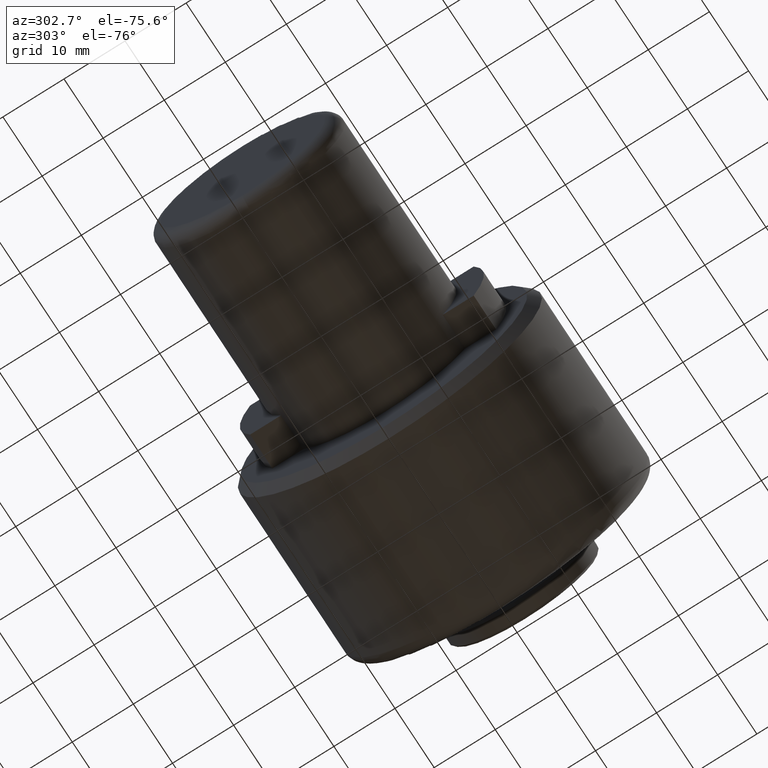
[diagram: clean part render]
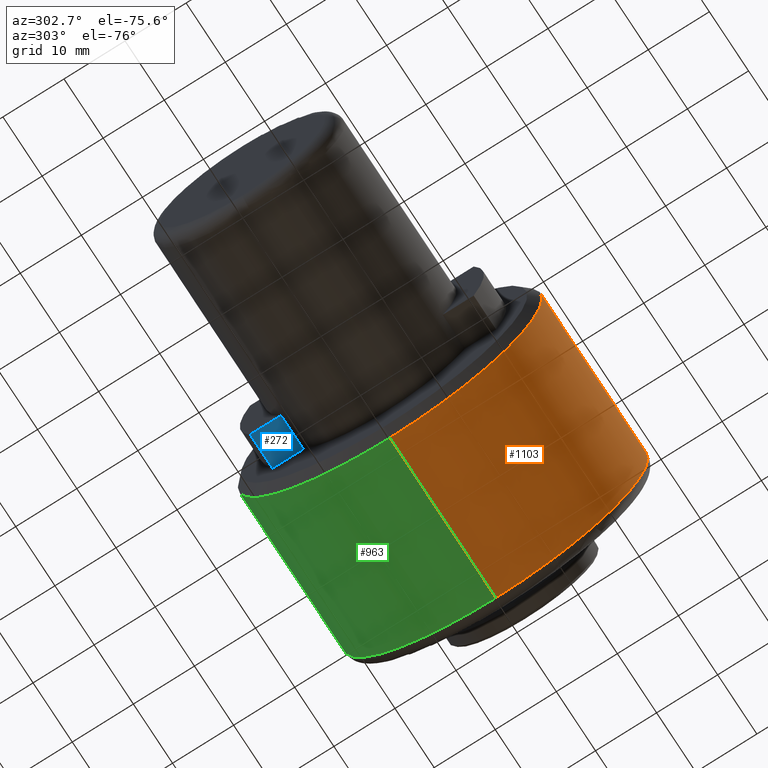
[diagram: same view with three faces highlighted in distinct colors, each labeled with its STEP entity id]
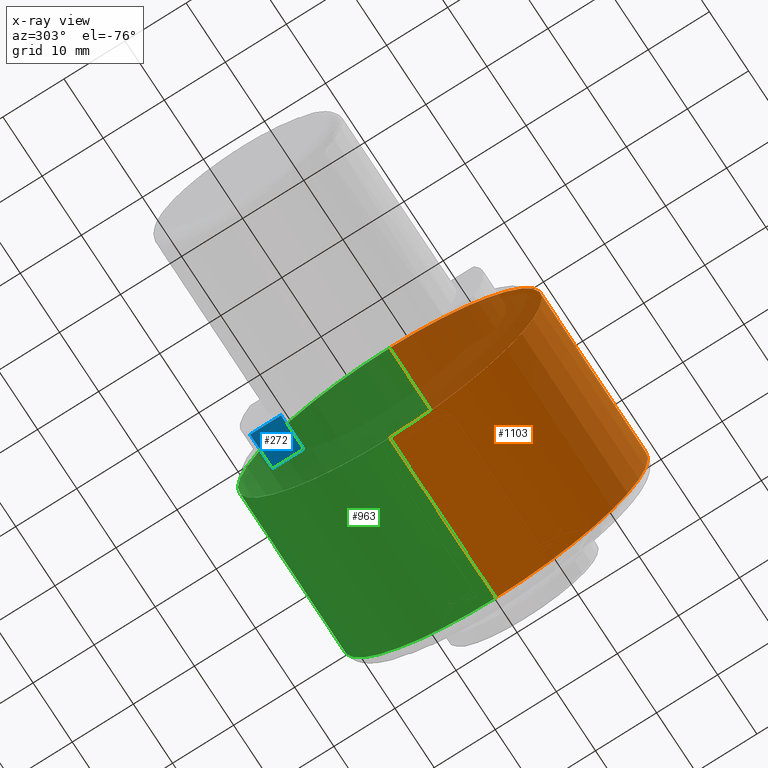
[diagram: x-ray of the same camera — body ghosted, the three highlighted faces saturated]
A machine part, auxiliary view with three faces highlighted in distinct colors.
The next image is the same camera in x-ray (body ghosted, the three faces saturated) — at least one of them is partly hidden behind the body in this view.
Their STEP definitions:

[orange] entity #1103 — the highlighted cylindrical surface (partial cylindrical patch) has radius 24.9 mm, axis along (-1, 0, 0).
#26 = CIRCLE ( 'NONE', #420, 24.89999999999999900 ) ;
#91 = DIRECTION ( 'NONE',  ( 1.000000000000000000, 0.0000000000000000000, 0.0000000000000000000 ) ) ;
#102 = DIRECTION ( 'NONE',  ( -1.000000000000000000, 0.0000000000000000000, 0.0000000000000000000 ) ) ;
#279 = VERTEX_POINT ( 'NONE', #495 ) ;
#291 = LINE ( 'NONE', #391, #810 ) ;
#312 = VERTEX_POINT ( 'NONE', #392 ) ;
#391 = CARTESIAN_POINT ( 'NONE',  ( 50.87143376199999500, 0.0000000000000000000, 24.89999999999999900 ) ) ;
#392 = CARTESIAN_POINT ( 'NONE',  ( 64.59999999999999400, 3.049370529876909300E-015, -24.89999999999999900 ) ) ;
#420 = AXIS2_PLACEMENT_3D ( 'NONE', #763, #91, #874 ) ;
#447 = EDGE_CURVE ( 'NONE', #312, #279, #1313, .T. ) ;
#451 = VERTEX_POINT ( 'NONE', #1076 ) ;
#459 = EDGE_CURVE ( 'NONE', #312, #451, #988, .T. ) ;
#495 = CARTESIAN_POINT ( 'NONE',  ( 64.59999999999999400, 0.0000000000000000000, 24.89999999999999900 ) ) ;
#528 = CARTESIAN_POINT ( 'NONE',  ( 64.59999999999999400, 0.0000000000000000000, 0.0000000000000000000 ) ) ;
#555 = DIRECTION ( 'NONE',  ( 0.0000000000000000000, 0.0000000000000000000, 1.000000000000000000 ) ) ;
#556 = FACE_OUTER_BOUND ( 'NONE', #571, .T. ) ;
#571 = EDGE_LOOP ( 'NONE', ( #1155, #636, #742, #672 ) ) ;
#626 = AXIS2_PLACEMENT_3D ( 'NONE', #528, #1301, #645 ) ;
#636 = ORIENTED_EDGE ( 'NONE', *, *, #447, .T. ) ;
#642 = EDGE_CURVE ( 'NONE', #279, #1437, #291, .T. ) ;
#645 = DIRECTION ( 'NONE',  ( 0.0000000000000000000, 0.0000000000000000000, -1.000000000000000000 ) ) ;
#672 = ORIENTED_EDGE ( 'NONE', *, *, #1022, .T. ) ;
#692 = VECTOR ( 'NONE', #746, 1000.000000000000000 ) ;
#720 = DIRECTION ( 'NONE',  ( -1.000000000000000000, 0.0000000000000000000, 0.0000000000000000000 ) ) ;
#742 = ORIENTED_EDGE ( 'NONE', *, *, #642, .T. ) ;
#746 = DIRECTION ( 'NONE',  ( -1.000000000000000000, 0.0000000000000000000, 0.0000000000000000000 ) ) ;
#763 = CARTESIAN_POINT ( 'NONE',  ( 37.54999999999996900, 0.0000000000000000000, 0.0000000000000000000 ) ) ;
#810 = VECTOR ( 'NONE', #720, 1000.000000000000000 ) ;
#831 = CARTESIAN_POINT ( 'NONE',  ( 37.54999999999996900, 3.049370529876905700E-015, 24.89999999999997000 ) ) ;
#874 = DIRECTION ( 'NONE',  ( 1.114681751631683300E-015, 0.0000000000000000000, -1.000000000000000000 ) ) ;
#988 = LINE ( 'NONE', #1413, #692 ) ;
#996 = CARTESIAN_POINT ( 'NONE',  ( 50.87143376199999500, 0.0000000000000000000, 0.0000000000000000000 ) ) ;
#1022 = EDGE_CURVE ( 'NONE', #1437, #451, #26, .T. ) ;
#1072 = CYLINDRICAL_SURFACE ( 'NONE', #1079, 24.89999999999999900 ) ;
#1076 = CARTESIAN_POINT ( 'NONE',  ( 37.54999999999996900, 0.0000000000000000000, -24.89999999999997000 ) ) ;
#1079 = AXIS2_PLACEMENT_3D ( 'NONE', #996, #102, #555 ) ;
#1103 = ADVANCED_FACE ( 'NONE', ( #556 ), #1072, .T. ) ;
#1155 = ORIENTED_EDGE ( 'NONE', *, *, #459, .F. ) ;
#1301 = DIRECTION ( 'NONE',  ( -1.000000000000000000, 0.0000000000000000000, -0.0000000000000000000 ) ) ;
#1313 = CIRCLE ( 'NONE', #626, 24.89999999999999900 ) ;
#1413 = CARTESIAN_POINT ( 'NONE',  ( 50.87143376199999500, 3.049370529876909300E-015, -24.89999999999999900 ) ) ;
#1437 = VERTEX_POINT ( 'NONE', #831 ) ;

[blue] entity #272 — the highlighted planar face has unit normal (0, 0, -1).
#79 = DIRECTION ( 'NONE',  ( 0.0000000000000000000, 1.000000000000000000, 0.0000000000000000000 ) ) ;
#100 = LINE ( 'NONE', #1267, #406 ) ;
#127 = VERTEX_POINT ( 'NONE', #418 ) ;
#191 = EDGE_LOOP ( 'NONE', ( #428, #928, #798, #1167 ) ) ;
#255 = EDGE_CURVE ( 'NONE', #906, #679, #1231, .T. ) ;
#262 = CARTESIAN_POINT ( 'NONE',  ( 33.25000000000000000, 18.30839971200000000, -8.050000000000000700 ) ) ;
#268 = DIRECTION ( 'NONE',  ( 0.0000000000000000000, 0.0000000000000000000, -1.000000000000000000 ) ) ;
#272 = ADVANCED_FACE ( 'NONE', ( #604 ), #820, .T. ) ;
#283 = EDGE_CURVE ( 'NONE', #127, #349, #1192, .T. ) ;
#308 = VECTOR ( 'NONE', #610, 1000.000000000000000 ) ;
#346 = VECTOR ( 'NONE', #1265, 1000.000000000000000 ) ;
#349 = VERTEX_POINT ( 'NONE', #724 ) ;
#406 = VECTOR ( 'NONE', #488, 1000.000000000000000 ) ;
#418 = CARTESIAN_POINT ( 'NONE',  ( 36.10000000000000100, 13.24565966429947900, -8.050000003574520900 ) ) ;
#428 = ORIENTED_EDGE ( 'NONE', *, *, #283, .T. ) ;
#462 = EDGE_CURVE ( 'NONE', #127, #679, #1283, .T. ) ;
#463 = VECTOR ( 'NONE', #79, 1000.000000000000000 ) ;
#488 = DIRECTION ( 'NONE',  ( 0.0000000000000000000, 1.000000000000000000, 0.0000000000000000000 ) ) ;
#602 = CARTESIAN_POINT ( 'NONE',  ( 22.94394856799999600, 13.24565966529732500, -8.050000001932645000 ) ) ;
#604 = FACE_OUTER_BOUND ( 'NONE', #191, .T. ) ;
#610 = DIRECTION ( 'NONE',  ( -1.000000000000000000, 0.0000000000000000000, 0.0000000000000000000 ) ) ;
#679 = VERTEX_POINT ( 'NONE', #1161 ) ;
#724 = CARTESIAN_POINT ( 'NONE',  ( 30.39999999995988100, 13.24565966588460200, -8.050000000966322800 ) ) ;
#749 = CARTESIAN_POINT ( 'NONE',  ( 30.39999999999999900, 18.30839971180389000, -8.050000000000000700 ) ) ;
#798 = ORIENTED_EDGE ( 'NONE', *, *, #255, .T. ) ;
#820 = PLANE ( 'NONE',  #1087 ) ;
#906 = VERTEX_POINT ( 'NONE', #749 ) ;
#928 = ORIENTED_EDGE ( 'NONE', *, *, #1328, .T. ) ;
#938 = CARTESIAN_POINT ( 'NONE',  ( 30.39999999999999900, 13.24565966600000000, -8.050000000000000700 ) ) ;
#1046 = DIRECTION ( 'NONE',  ( 0.0000000000000000000, 1.000000000000000000, 0.0000000000000000000 ) ) ;
#1087 = AXIS2_PLACEMENT_3D ( 'NONE', #938, #268, #1046 ) ;
#1161 = CARTESIAN_POINT ( 'NONE',  ( 36.10000000000000100, 18.30839971065709900, -8.050000002608200600 ) ) ;
#1167 = ORIENTED_EDGE ( 'NONE', *, *, #462, .F. ) ;
#1192 = LINE ( 'NONE', #602, #308 ) ;
#1231 = LINE ( 'NONE', #262, #346 ) ;
#1265 = DIRECTION ( 'NONE',  ( 1.000000000000000000, 0.0000000000000000000, 0.0000000000000000000 ) ) ;
#1267 = CARTESIAN_POINT ( 'NONE',  ( 30.39999999999999900, 16.62282983299999700, -8.050000000000000700 ) ) ;
#1283 = LINE ( 'NONE', #1416, #463 ) ;
#1328 = EDGE_CURVE ( 'NONE', #349, #906, #100, .T. ) ;
#1416 = CARTESIAN_POINT ( 'NONE',  ( 36.10000000000000100, 0.0000000000000000000, -8.050000005216396900 ) ) ;

[green] entity #963 — the highlighted cylindrical surface (partial cylindrical patch) has radius 24.9 mm, axis along (-1, 0, 0).
#110 = CIRCLE ( 'NONE', #941, 24.89999999999999900 ) ;
#139 = ORIENTED_EDGE ( 'NONE', *, *, #882, .T. ) ;
#177 = ORIENTED_EDGE ( 'NONE', *, *, #459, .T. ) ;
#194 = DIRECTION ( 'NONE',  ( -1.000000000000000000, 0.0000000000000000000, 0.0000000000000000000 ) ) ;
#246 = DIRECTION ( 'NONE',  ( 1.000000000000000000, 0.0000000000000000000, 0.0000000000000000000 ) ) ;
#279 = VERTEX_POINT ( 'NONE', #495 ) ;
#291 = LINE ( 'NONE', #391, #810 ) ;
#312 = VERTEX_POINT ( 'NONE', #392 ) ;
#332 = CYLINDRICAL_SURFACE ( 'NONE', #493, 24.89999999999999900 ) ;
#369 = FACE_OUTER_BOUND ( 'NONE', #1060, .T. ) ;
#391 = CARTESIAN_POINT ( 'NONE',  ( 50.87143376199999500, 0.0000000000000000000, 24.89999999999999900 ) ) ;
#392 = CARTESIAN_POINT ( 'NONE',  ( 64.59999999999999400, 3.049370529876909300E-015, -24.89999999999999900 ) ) ;
#451 = VERTEX_POINT ( 'NONE', #1076 ) ;
#459 = EDGE_CURVE ( 'NONE', #312, #451, #988, .T. ) ;
#493 = AXIS2_PLACEMENT_3D ( 'NONE', #1205, #194, #752 ) ;
#495 = CARTESIAN_POINT ( 'NONE',  ( 64.59999999999999400, 0.0000000000000000000, 24.89999999999999900 ) ) ;
#530 = CARTESIAN_POINT ( 'NONE',  ( 64.59999999999999400, 0.0000000000000000000, 0.0000000000000000000 ) ) ;
#565 = ORIENTED_EDGE ( 'NONE', *, *, #1210, .T. ) ;
#642 = EDGE_CURVE ( 'NONE', #279, #1437, #291, .T. ) ;
#649 = DIRECTION ( 'NONE',  ( 0.0000000000000000000, 0.0000000000000000000, -1.000000000000000000 ) ) ;
#692 = VECTOR ( 'NONE', #746, 1000.000000000000000 ) ;
#720 = DIRECTION ( 'NONE',  ( -1.000000000000000000, 0.0000000000000000000, 0.0000000000000000000 ) ) ;
#746 = DIRECTION ( 'NONE',  ( -1.000000000000000000, 0.0000000000000000000, 0.0000000000000000000 ) ) ;
#752 = DIRECTION ( 'NONE',  ( 0.0000000000000000000, 0.0000000000000000000, 1.000000000000000000 ) ) ;
#807 = ORIENTED_EDGE ( 'NONE', *, *, #642, .F. ) ;
#810 = VECTOR ( 'NONE', #720, 1000.000000000000000 ) ;
#831 = CARTESIAN_POINT ( 'NONE',  ( 37.54999999999996900, 3.049370529876905700E-015, 24.89999999999997000 ) ) ;
#882 = EDGE_CURVE ( 'NONE', #279, #312, #1287, .T. ) ;
#920 = CARTESIAN_POINT ( 'NONE',  ( 37.54999999999996900, 0.0000000000000000000, 0.0000000000000000000 ) ) ;
#941 = AXIS2_PLACEMENT_3D ( 'NONE', #920, #246, #1028 ) ;
#963 = ADVANCED_FACE ( 'NONE', ( #369 ), #332, .T. ) ;
#988 = LINE ( 'NONE', #1413, #692 ) ;
#1028 = DIRECTION ( 'NONE',  ( 1.114681751631683300E-015, 0.0000000000000000000, -1.000000000000000000 ) ) ;
#1060 = EDGE_LOOP ( 'NONE', ( #139, #177, #565, #807 ) ) ;
#1076 = CARTESIAN_POINT ( 'NONE',  ( 37.54999999999996900, 0.0000000000000000000, -24.89999999999997000 ) ) ;
#1205 = CARTESIAN_POINT ( 'NONE',  ( 50.87143376199999500, 0.0000000000000000000, 0.0000000000000000000 ) ) ;
#1210 = EDGE_CURVE ( 'NONE', #451, #1437, #110, .T. ) ;
#1287 = CIRCLE ( 'NONE', #1335, 24.89999999999999900 ) ;
#1304 = DIRECTION ( 'NONE',  ( -1.000000000000000000, 0.0000000000000000000, -0.0000000000000000000 ) ) ;
#1335 = AXIS2_PLACEMENT_3D ( 'NONE', #530, #1304, #649 ) ;
#1413 = CARTESIAN_POINT ( 'NONE',  ( 50.87143376199999500, 3.049370529876909300E-015, -24.89999999999999900 ) ) ;
#1437 = VERTEX_POINT ( 'NONE', #831 ) ;